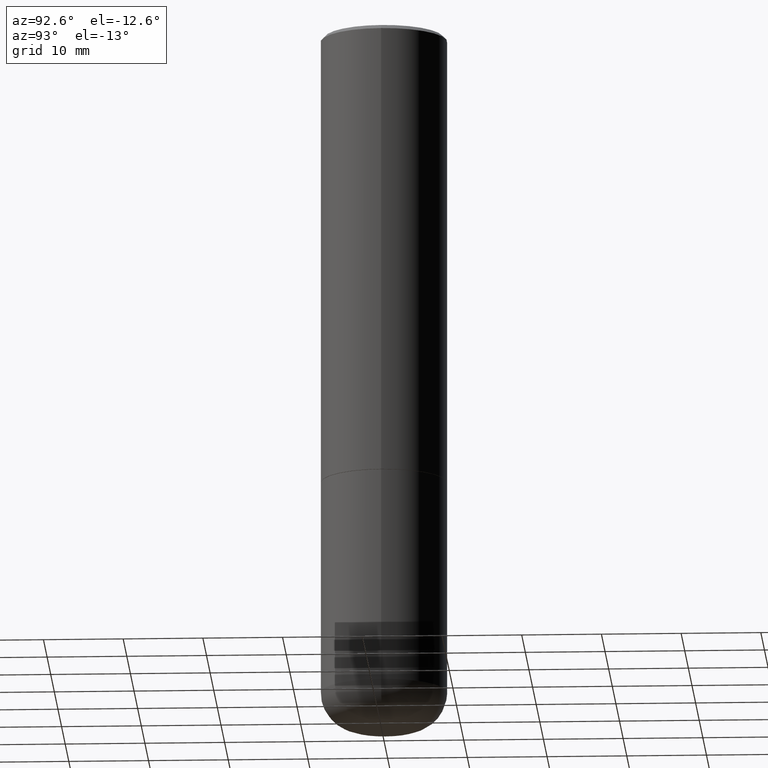
[diagram: clean part render]
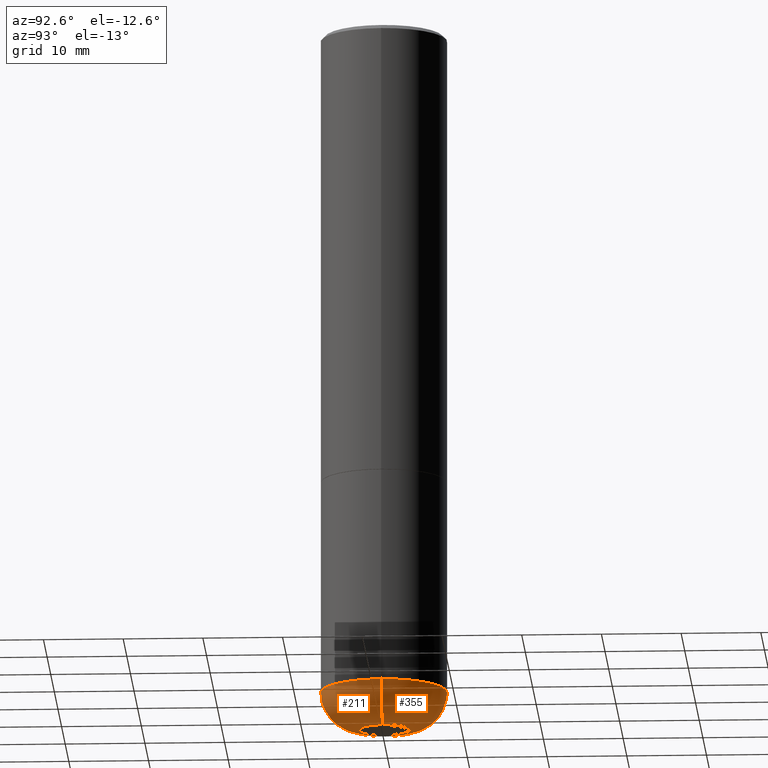
[diagram: same view with one multi-face feature highlighted, each face labeled with its STEP entity id]
A machine part, auxiliary view. The highlighted faces form ONE feature: a constant-radius fillet chain: 2 tangent blend faces with common blend radius 4.826 mm. The faces share edges in the B-rep.
Their STEP definitions:
[1] entity #355 (Torus):
#10 = CARTESIAN_POINT ( 'NONE',  ( -0.1225000000000000255, -1.068638838026468806E-14, -3.310000000000000053 ) ) ;
#11 = ORIENTED_EDGE ( 'NONE', *, *, #335, .F. ) ;
#29 = DIRECTION ( 'NONE',  ( -2.445468806185136597E-29, 3.491481338843145583E-15, 1.000000000000000000 ) ) ;
#45 = ORIENTED_EDGE ( 'NONE', *, *, #117, .T. ) ;
#52 = CARTESIAN_POINT ( 'NONE',  ( 0.1225000000000000255, -1.241221615958737947E-14, -3.310000000000000053 ) ) ;
#59 = CIRCLE ( 'NONE', #353, 0.3125000000000000000 ) ;
#60 = DIRECTION ( 'NONE',  ( -2.445468806185136597E-29, 3.491481338843145583E-15, 1.000000000000000000 ) ) ;
#61 = DIRECTION ( 'NONE',  ( 1.000000000000000000, -6.982962677686269077E-15, 0.000000000000000000 ) ) ;
#89 = AXIS2_PLACEMENT_3D ( 'NONE', #327, #220, #288 ) ;
#93 = VERTEX_POINT ( 'NONE', #343 ) ;
#96 = AXIS2_PLACEMENT_3D ( 'NONE', #413, #29, #246 ) ;
#99 = CARTESIAN_POINT ( 'NONE',  ( 8.094501748472800969E-29, -1.155680323157081116E-14, -3.310000000000000053 ) ) ;
#100 = VERTEX_POINT ( 'NONE', #150 ) ;
#117 = EDGE_CURVE ( 'NONE', #128, #93, #282, .T. ) ;
#128 = VERTEX_POINT ( 'NONE', #376 ) ;
#129 = AXIS2_PLACEMENT_3D ( 'NONE', #52, #351, #250 ) ;
#133 = DIRECTION ( 'NONE',  ( -1.000000000000000000, 7.105427357600998703E-15, 0.000000000000000000 ) ) ;
#136 = DIRECTION ( 'NONE',  ( 7.105427357601001859E-15, 1.000000000000000000, -3.491481338843145583E-15 ) ) ;
#137 = VERTEX_POINT ( 'NONE', #212 ) ;
#150 = CARTESIAN_POINT ( 'NONE',  ( 0.3125000000000000000, -1.373897906834776951E-14, -3.310000000000000053 ) ) ;
#163 = EDGE_CURVE ( 'NONE', #128, #100, #276, .T. ) ;
#212 = CARTESIAN_POINT ( 'NONE',  ( -0.3125000000000000000, -9.336357182320498084E-15, -3.310000000000000053 ) ) ;
#220 = DIRECTION ( 'NONE',  ( -2.445468806185136597E-29, 3.491481338843145583E-15, 1.000000000000000000 ) ) ;
#231 = ORIENTED_EDGE ( 'NONE', *, *, #405, .T. ) ;
#246 = DIRECTION ( 'NONE',  ( 1.000000000000000000, -6.982962677686263555E-15, 0.000000000000000000 ) ) ;
#249 = CIRCLE ( 'NONE', #255, 0.1899999999999999745 ) ;
#250 = DIRECTION ( 'NONE',  ( 1.000000000000000000, -6.982962677686261977E-15, 0.000000000000000000 ) ) ;
#255 = AXIS2_PLACEMENT_3D ( 'NONE', #10, #136, #133 ) ;
#268 = TOROIDAL_SURFACE ( 'NONE', #89, 0.1225000000000000255, 0.1899999999999999467 ) ;
#276 = CIRCLE ( 'NONE', #129, 0.1899999999999999745 ) ;
#282 = CIRCLE ( 'NONE', #96, 0.1225000000000000394 ) ;
#288 = DIRECTION ( 'NONE',  ( 1.000000000000000000, -6.982962677686269077E-15, 4.883557194083114022E-29 ) ) ;
#302 = EDGE_LOOP ( 'NONE', ( #45, #231, #11, #324 ) ) ;
#324 = ORIENTED_EDGE ( 'NONE', *, *, #163, .F. ) ;
#327 = CARTESIAN_POINT ( 'NONE',  ( 8.094501748472800969E-29, -1.155680323157081116E-14, -3.310000000000000053 ) ) ;
#335 = EDGE_CURVE ( 'NONE', #100, #137, #59, .T. ) ;
#343 = CARTESIAN_POINT ( 'NONE',  ( -0.1225000000000000394, -1.034306350848269295E-14, -3.500000000000000000 ) ) ;
#351 = DIRECTION ( 'NONE',  ( -6.982962677686266711E-15, -1.000000000000000000, 3.491481338843145583E-15 ) ) ;
#353 = AXIS2_PLACEMENT_3D ( 'NONE', #99, #60, #61 ) ;
#355 = ADVANCED_FACE ( 'NONE', ( #418 ), #268, .T. ) ;
#376 = CARTESIAN_POINT ( 'NONE',  ( 0.1225000000000000394, -1.307559761396757607E-14, -3.500000000000000000 ) ) ;
#405 = EDGE_CURVE ( 'NONE', #93, #137, #249, .T. ) ;
#413 = CARTESIAN_POINT ( 'NONE',  ( 8.559140821647976968E-29, -1.222018468595100934E-14, -3.500000000000000000 ) ) ;
#418 = FACE_OUTER_BOUND ( 'NONE', #302, .T. ) ;
[2] entity #211 (Torus):
#10 = CARTESIAN_POINT ( 'NONE',  ( -0.1225000000000000255, -1.068638838026468806E-14, -3.310000000000000053 ) ) ;
#21 = DIRECTION ( 'NONE',  ( 1.000000000000000000, -6.982962677686269077E-15, 4.883557194083114022E-29 ) ) ;
#34 = AXIS2_PLACEMENT_3D ( 'NONE', #352, #184, #124 ) ;
#36 = TOROIDAL_SURFACE ( 'NONE', #243, 0.1225000000000000255, 0.1899999999999999467 ) ;
#40 = CARTESIAN_POINT ( 'NONE',  ( 8.559140821647976968E-29, -1.222018468595100934E-14, -3.500000000000000000 ) ) ;
#52 = CARTESIAN_POINT ( 'NONE',  ( 0.1225000000000000255, -1.241221615958737947E-14, -3.310000000000000053 ) ) ;
#93 = VERTEX_POINT ( 'NONE', #343 ) ;
#100 = VERTEX_POINT ( 'NONE', #150 ) ;
#102 = ORIENTED_EDGE ( 'NONE', *, *, #405, .F. ) ;
#124 = DIRECTION ( 'NONE',  ( 1.000000000000000000, -6.982962677686269077E-15, 0.000000000000000000 ) ) ;
#128 = VERTEX_POINT ( 'NONE', #376 ) ;
#129 = AXIS2_PLACEMENT_3D ( 'NONE', #52, #351, #250 ) ;
#133 = DIRECTION ( 'NONE',  ( -1.000000000000000000, 7.105427357600998703E-15, 0.000000000000000000 ) ) ;
#136 = DIRECTION ( 'NONE',  ( 7.105427357601001859E-15, 1.000000000000000000, -3.491481338843145583E-15 ) ) ;
#137 = VERTEX_POINT ( 'NONE', #212 ) ;
#150 = CARTESIAN_POINT ( 'NONE',  ( 0.3125000000000000000, -1.373897906834776951E-14, -3.310000000000000053 ) ) ;
#163 = EDGE_CURVE ( 'NONE', #128, #100, #276, .T. ) ;
#177 = AXIS2_PLACEMENT_3D ( 'NONE', #40, #293, #354 ) ;
#184 = DIRECTION ( 'NONE',  ( -2.445468806185136597E-29, 3.491481338843145583E-15, 1.000000000000000000 ) ) ;
#190 = CIRCLE ( 'NONE', #177, 0.1225000000000000394 ) ;
#211 = ADVANCED_FACE ( 'NONE', ( #315 ), #36, .T. ) ;
#212 = CARTESIAN_POINT ( 'NONE',  ( -0.3125000000000000000, -9.336357182320498084E-15, -3.310000000000000053 ) ) ;
#227 = ORIENTED_EDGE ( 'NONE', *, *, #239, .F. ) ;
#239 = EDGE_CURVE ( 'NONE', #137, #100, #347, .T. ) ;
#243 = AXIS2_PLACEMENT_3D ( 'NONE', #384, #409, #21 ) ;
#249 = CIRCLE ( 'NONE', #255, 0.1899999999999999745 ) ;
#250 = DIRECTION ( 'NONE',  ( 1.000000000000000000, -6.982962677686261977E-15, 0.000000000000000000 ) ) ;
#255 = AXIS2_PLACEMENT_3D ( 'NONE', #10, #136, #133 ) ;
#276 = CIRCLE ( 'NONE', #129, 0.1899999999999999745 ) ;
#293 = DIRECTION ( 'NONE',  ( -2.445468806185136597E-29, 3.491481338843145583E-15, 1.000000000000000000 ) ) ;
#297 = ORIENTED_EDGE ( 'NONE', *, *, #163, .T. ) ;
#303 = EDGE_CURVE ( 'NONE', #93, #128, #190, .T. ) ;
#315 = FACE_OUTER_BOUND ( 'NONE', #338, .T. ) ;
#338 = EDGE_LOOP ( 'NONE', ( #102, #375, #297, #227 ) ) ;
#343 = CARTESIAN_POINT ( 'NONE',  ( -0.1225000000000000394, -1.034306350848269295E-14, -3.500000000000000000 ) ) ;
#347 = CIRCLE ( 'NONE', #34, 0.3125000000000000000 ) ;
#351 = DIRECTION ( 'NONE',  ( -6.982962677686266711E-15, -1.000000000000000000, 3.491481338843145583E-15 ) ) ;
#352 = CARTESIAN_POINT ( 'NONE',  ( 8.094501748472800969E-29, -1.155680323157081116E-14, -3.310000000000000053 ) ) ;
#354 = DIRECTION ( 'NONE',  ( 1.000000000000000000, -6.982962677686263555E-15, 0.000000000000000000 ) ) ;
#375 = ORIENTED_EDGE ( 'NONE', *, *, #303, .T. ) ;
#376 = CARTESIAN_POINT ( 'NONE',  ( 0.1225000000000000394, -1.307559761396757607E-14, -3.500000000000000000 ) ) ;
#384 = CARTESIAN_POINT ( 'NONE',  ( 8.094501748472800969E-29, -1.155680323157081116E-14, -3.310000000000000053 ) ) ;
#405 = EDGE_CURVE ( 'NONE', #93, #137, #249, .T. ) ;
#409 = DIRECTION ( 'NONE',  ( -2.445468806185136597E-29, 3.491481338843145583E-15, 1.000000000000000000 ) ) ;